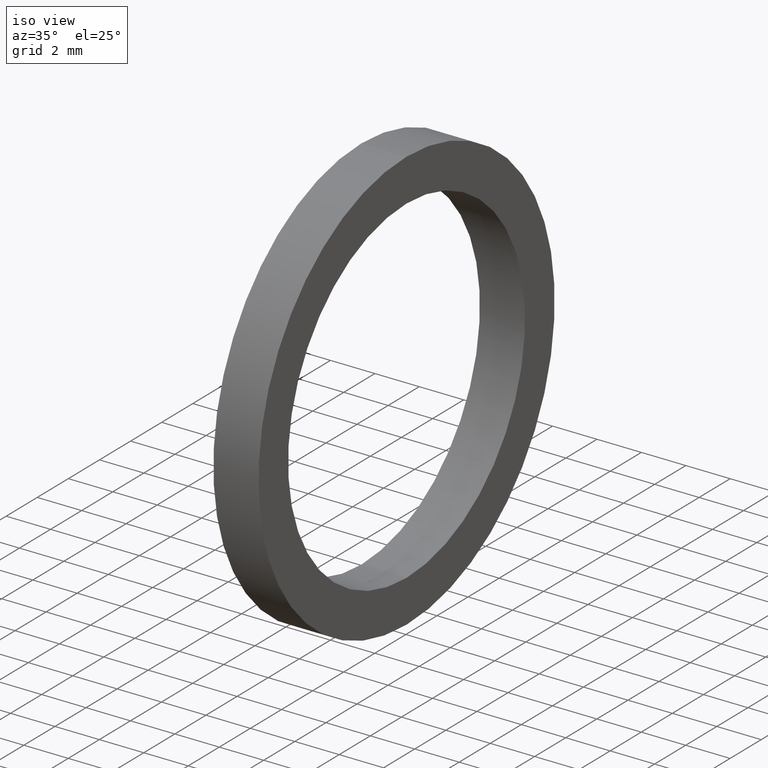
[diagram: clean part render]
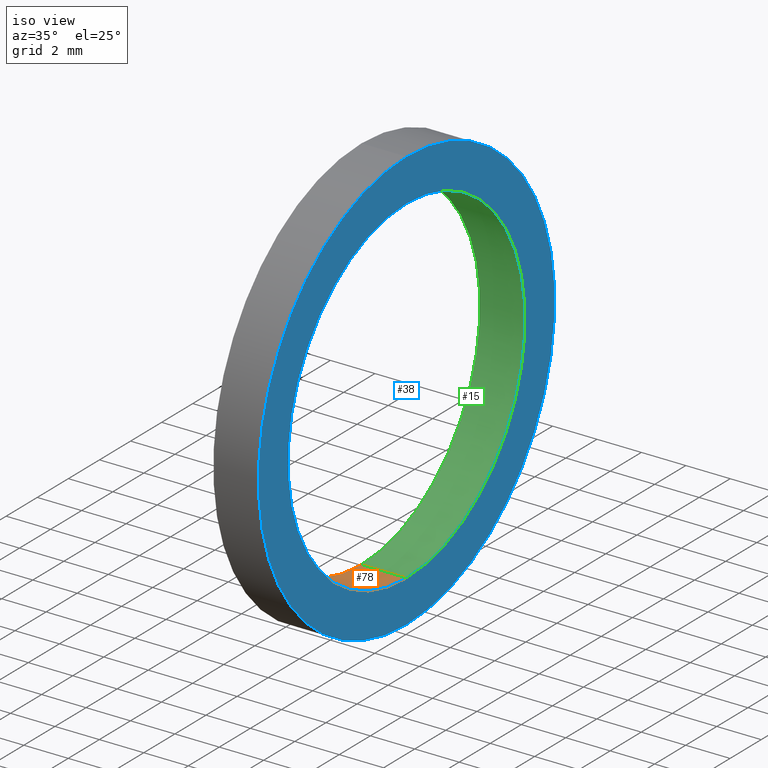
[diagram: same view with three faces highlighted in distinct colors, each labeled with its STEP entity id]
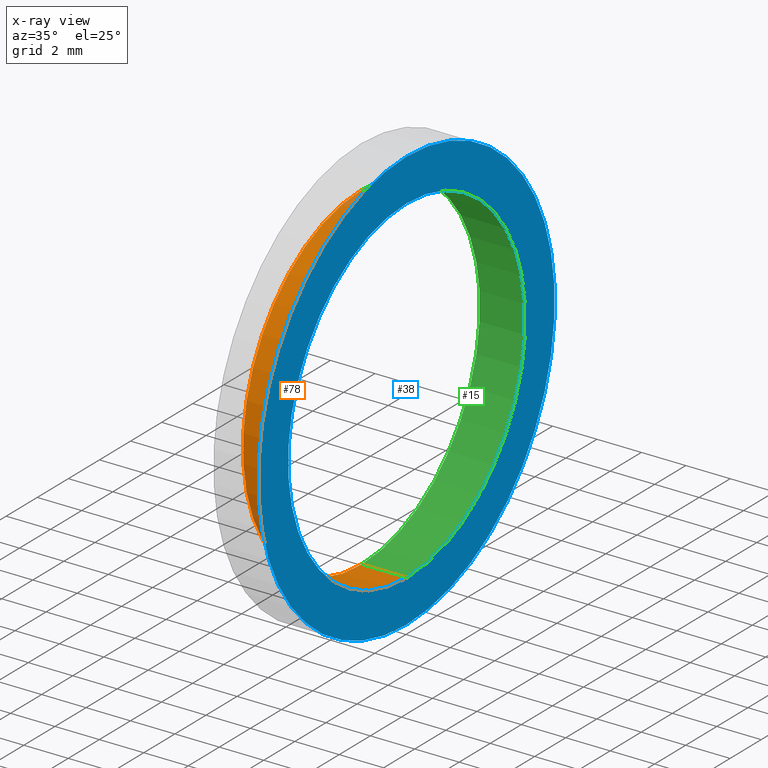
[diagram: x-ray of the same camera — body ghosted, the three highlighted faces saturated]
A machine part, iso view with three faces highlighted in distinct colors.
The next image is the same camera in x-ray (body ghosted, the three faces saturated) — at least one of them is partly hidden behind the body in this view.
Their STEP definitions:

[orange] entity #78 — the highlighted cylindrical surface (partial cylindrical patch) has radius 7.62 mm, axis along (-1, 0, 0).
#24 = ORIENTED_EDGE ( 'NONE', *, *, #51, .F. ) ;
#25 = VERTEX_POINT ( 'NONE', #172 ) ;
#29 = VERTEX_POINT ( 'NONE', #164 ) ;
#33 = EDGE_LOOP ( 'NONE', ( #24, #49, #64, #58 ) ) ;
#49 = ORIENTED_EDGE ( 'NONE', *, *, #50, .T. ) ;
#50 = EDGE_CURVE ( 'NONE', #25, #29, #202, .T. ) ;
#51 = EDGE_CURVE ( 'NONE', #25, #52, #91, .T. ) ;
#52 = VERTEX_POINT ( 'NONE', #177 ) ;
#58 = ORIENTED_EDGE ( 'NONE', *, *, #59, .F. ) ;
#59 = EDGE_CURVE ( 'NONE', #52, #60, #176, .T. ) ;
#60 = VERTEX_POINT ( 'NONE', #168 ) ;
#64 = ORIENTED_EDGE ( 'NONE', *, *, #65, .T. ) ;
#65 = EDGE_CURVE ( 'NONE', #29, #60, #248, .T. ) ;
#78 = ADVANCED_FACE ( 'NONE', ( #97 ), #96, .F. ) ;
#87 = DIRECTION ( 'NONE',  ( 0.0000000000000000000, 0.0000000000000000000, 1.000000000000000000 ) ) ;
#88 = DIRECTION ( 'NONE',  ( -1.000000000000000000, 0.0000000000000000000, 0.0000000000000000000 ) ) ;
#89 = CARTESIAN_POINT ( 'NONE',  ( 0.07999999999999996000, 0.0000000000000000000, 0.0000000000000000000 ) ) ;
#90 = AXIS2_PLACEMENT_3D ( 'NONE', #89, #88, #87 ) ;
#91 = CIRCLE ( 'NONE', #90, 0.2999999999999999900 ) ;
#92 = DIRECTION ( 'NONE',  ( 0.0000000000000000000, 0.0000000000000000000, 1.000000000000000000 ) ) ;
#93 = DIRECTION ( 'NONE',  ( -1.000000000000000000, 0.0000000000000000000, 0.0000000000000000000 ) ) ;
#94 = CARTESIAN_POINT ( 'NONE',  ( -1.721125226614714300, 0.0000000000000000000, 0.0000000000000000000 ) ) ;
#95 = AXIS2_PLACEMENT_3D ( 'NONE', #94, #93, #92 ) ;
#96 = CYLINDRICAL_SURFACE ( 'NONE', #95, 0.2999999999999999900 ) ;
#97 = FACE_OUTER_BOUND ( 'NONE', #33, .T. ) ;
#103 = DIRECTION ( 'NONE',  ( 0.0000000000000000000, 0.0000000000000000000, 1.000000000000000000 ) ) ;
#104 = DIRECTION ( 'NONE',  ( -1.000000000000000000, 0.0000000000000000000, 0.0000000000000000000 ) ) ;
#164 = CARTESIAN_POINT ( 'NONE',  ( 0.0000000000000000000, 3.673940397442058900E-017, -0.2999999999999999900 ) ) ;
#168 = CARTESIAN_POINT ( 'NONE',  ( 0.0000000000000000000, 0.0000000000000000000, 0.2999999999999999900 ) ) ;
#169 = DIRECTION ( 'NONE',  ( -1.000000000000000000, 0.0000000000000000000, 0.0000000000000000000 ) ) ;
#172 = CARTESIAN_POINT ( 'NONE',  ( 0.07999999999999996000, 3.673940397442058900E-017, -0.2999999999999999900 ) ) ;
#176 = LINE ( 'NONE', #211, #210 ) ;
#177 = CARTESIAN_POINT ( 'NONE',  ( 0.07999999999999996000, 0.0000000000000000000, 0.2999999999999999900 ) ) ;
#199 = DIRECTION ( 'NONE',  ( -1.000000000000000000, 0.0000000000000000000, 0.0000000000000000000 ) ) ;
#200 = VECTOR ( 'NONE', #199, 39.37007874015748100 ) ;
#201 = CARTESIAN_POINT ( 'NONE',  ( -1.721125226614714300, 3.673940397442058900E-017, -0.2999999999999999900 ) ) ;
#202 = LINE ( 'NONE', #201, #200 ) ;
#210 = VECTOR ( 'NONE', #169, 39.37007874015748100 ) ;
#211 = CARTESIAN_POINT ( 'NONE',  ( -1.721125226614714300, 0.0000000000000000000, 0.2999999999999999900 ) ) ;
#246 = CARTESIAN_POINT ( 'NONE',  ( 0.0000000000000000000, 0.0000000000000000000, 0.0000000000000000000 ) ) ;
#247 = AXIS2_PLACEMENT_3D ( 'NONE', #246, #104, #103 ) ;
#248 = CIRCLE ( 'NONE', #247, 0.2999999999999999900 ) ;

[blue] entity #38 — the highlighted planar face has unit normal (1, 0, 0).
#25 = VERTEX_POINT ( 'NONE', #172 ) ;
#26 = EDGE_CURVE ( 'NONE', #32, #63, #209, .T. ) ;
#28 = EDGE_LOOP ( 'NONE', ( #79, #81 ) ) ;
#31 = EDGE_CURVE ( 'NONE', #63, #32, #85, .T. ) ;
#32 = VERTEX_POINT ( 'NONE', #86 ) ;
#37 = ORIENTED_EDGE ( 'NONE', *, *, #26, .F. ) ;
#38 = ADVANCED_FACE ( 'NONE', ( #193, #240 ), #239, .T. ) ;
#51 = EDGE_CURVE ( 'NONE', #25, #52, #91, .T. ) ;
#52 = VERTEX_POINT ( 'NONE', #177 ) ;
#63 = VERTEX_POINT ( 'NONE', #249 ) ;
#79 = ORIENTED_EDGE ( 'NONE', *, *, #80, .T. ) ;
#80 = EDGE_CURVE ( 'NONE', #52, #25, #220, .T. ) ;
#81 = ORIENTED_EDGE ( 'NONE', *, *, #51, .T. ) ;
#82 = EDGE_LOOP ( 'NONE', ( #83, #37 ) ) ;
#83 = ORIENTED_EDGE ( 'NONE', *, *, #31, .F. ) ;
#84 = AXIS2_PLACEMENT_3D ( 'NONE', #173, #204, #203 ) ;
#85 = CIRCLE ( 'NONE', #84, 0.3750000000000000600 ) ;
#86 = CARTESIAN_POINT ( 'NONE',  ( 0.07999999999999996000, 4.592425496802575500E-017, -0.3750000000000000600 ) ) ;
#87 = DIRECTION ( 'NONE',  ( 0.0000000000000000000, 0.0000000000000000000, 1.000000000000000000 ) ) ;
#88 = DIRECTION ( 'NONE',  ( -1.000000000000000000, 0.0000000000000000000, 0.0000000000000000000 ) ) ;
#89 = CARTESIAN_POINT ( 'NONE',  ( 0.07999999999999996000, 0.0000000000000000000, 0.0000000000000000000 ) ) ;
#90 = AXIS2_PLACEMENT_3D ( 'NONE', #89, #88, #87 ) ;
#91 = CIRCLE ( 'NONE', #90, 0.2999999999999999900 ) ;
#108 = CARTESIAN_POINT ( 'NONE',  ( 0.07999999999999996000, 0.0000000000000000000, 0.0000000000000000000 ) ) ;
#172 = CARTESIAN_POINT ( 'NONE',  ( 0.07999999999999996000, 3.673940397442058900E-017, -0.2999999999999999900 ) ) ;
#173 = CARTESIAN_POINT ( 'NONE',  ( 0.07999999999999996000, 0.0000000000000000000, 0.0000000000000000000 ) ) ;
#177 = CARTESIAN_POINT ( 'NONE',  ( 0.07999999999999996000, 0.0000000000000000000, 0.2999999999999999900 ) ) ;
#193 = FACE_BOUND ( 'NONE', #28, .T. ) ;
#194 = DIRECTION ( 'NONE',  ( 0.0000000000000000000, 0.0000000000000000000, -1.000000000000000000 ) ) ;
#195 = DIRECTION ( 'NONE',  ( 1.000000000000000000, 0.0000000000000000000, 0.0000000000000000000 ) ) ;
#196 = CARTESIAN_POINT ( 'NONE',  ( 0.08000000000000000200, -0.2999999999999999900, 0.0000000000000000000 ) ) ;
#197 = AXIS2_PLACEMENT_3D ( 'NONE', #196, #195, #194 ) ;
#203 = DIRECTION ( 'NONE',  ( 0.0000000000000000000, 0.0000000000000000000, 1.000000000000000000 ) ) ;
#204 = DIRECTION ( 'NONE',  ( -1.000000000000000000, 0.0000000000000000000, 0.0000000000000000000 ) ) ;
#209 = CIRCLE ( 'NONE', #215, 0.3750000000000000600 ) ;
#215 = AXIS2_PLACEMENT_3D ( 'NONE', #108, #222, #241 ) ;
#216 = DIRECTION ( 'NONE',  ( 0.0000000000000000000, 0.0000000000000000000, 1.000000000000000000 ) ) ;
#217 = DIRECTION ( 'NONE',  ( -1.000000000000000000, 0.0000000000000000000, 0.0000000000000000000 ) ) ;
#218 = CARTESIAN_POINT ( 'NONE',  ( 0.07999999999999996000, 0.0000000000000000000, 0.0000000000000000000 ) ) ;
#219 = AXIS2_PLACEMENT_3D ( 'NONE', #218, #217, #216 ) ;
#220 = CIRCLE ( 'NONE', #219, 0.2999999999999999900 ) ;
#222 = DIRECTION ( 'NONE',  ( -1.000000000000000000, 0.0000000000000000000, 0.0000000000000000000 ) ) ;
#239 = PLANE ( 'NONE',  #197 ) ;
#240 = FACE_OUTER_BOUND ( 'NONE', #82, .T. ) ;
#241 = DIRECTION ( 'NONE',  ( 0.0000000000000000000, 0.0000000000000000000, 1.000000000000000000 ) ) ;
#249 = CARTESIAN_POINT ( 'NONE',  ( 0.07999999999999996000, 0.0000000000000000000, 0.3750000000000000600 ) ) ;

[green] entity #15 — the highlighted cylindrical surface (partial cylindrical patch) has radius 7.62 mm, axis along (-1, 0, 0).
#6 = CARTESIAN_POINT ( 'NONE',  ( -1.721125226614714300, 0.0000000000000000000, 0.0000000000000000000 ) ) ;
#7 = CYLINDRICAL_SURFACE ( 'NONE', #46, 0.2999999999999999900 ) ;
#8 = FACE_OUTER_BOUND ( 'NONE', #13, .T. ) ;
#9 = ORIENTED_EDGE ( 'NONE', *, *, #80, .F. ) ;
#10 = ORIENTED_EDGE ( 'NONE', *, *, #50, .F. ) ;
#11 = ORIENTED_EDGE ( 'NONE', *, *, #56, .T. ) ;
#13 = EDGE_LOOP ( 'NONE', ( #10, #9, #14, #11 ) ) ;
#14 = ORIENTED_EDGE ( 'NONE', *, *, #59, .T. ) ;
#15 = ADVANCED_FACE ( 'NONE', ( #8 ), #7, .F. ) ;
#25 = VERTEX_POINT ( 'NONE', #172 ) ;
#29 = VERTEX_POINT ( 'NONE', #164 ) ;
#44 = DIRECTION ( 'NONE',  ( 0.0000000000000000000, 0.0000000000000000000, 1.000000000000000000 ) ) ;
#45 = DIRECTION ( 'NONE',  ( -1.000000000000000000, 0.0000000000000000000, 0.0000000000000000000 ) ) ;
#46 = AXIS2_PLACEMENT_3D ( 'NONE', #6, #45, #44 ) ;
#50 = EDGE_CURVE ( 'NONE', #25, #29, #202, .T. ) ;
#52 = VERTEX_POINT ( 'NONE', #177 ) ;
#56 = EDGE_CURVE ( 'NONE', #60, #29, #175, .T. ) ;
#59 = EDGE_CURVE ( 'NONE', #52, #60, #176, .T. ) ;
#60 = VERTEX_POINT ( 'NONE', #168 ) ;
#80 = EDGE_CURVE ( 'NONE', #52, #25, #220, .T. ) ;
#164 = CARTESIAN_POINT ( 'NONE',  ( 0.0000000000000000000, 3.673940397442058900E-017, -0.2999999999999999900 ) ) ;
#168 = CARTESIAN_POINT ( 'NONE',  ( 0.0000000000000000000, 0.0000000000000000000, 0.2999999999999999900 ) ) ;
#169 = DIRECTION ( 'NONE',  ( -1.000000000000000000, 0.0000000000000000000, 0.0000000000000000000 ) ) ;
#172 = CARTESIAN_POINT ( 'NONE',  ( 0.07999999999999996000, 3.673940397442058900E-017, -0.2999999999999999900 ) ) ;
#174 = AXIS2_PLACEMENT_3D ( 'NONE', #214, #213, #212 ) ;
#175 = CIRCLE ( 'NONE', #174, 0.2999999999999999900 ) ;
#176 = LINE ( 'NONE', #211, #210 ) ;
#177 = CARTESIAN_POINT ( 'NONE',  ( 0.07999999999999996000, 0.0000000000000000000, 0.2999999999999999900 ) ) ;
#199 = DIRECTION ( 'NONE',  ( -1.000000000000000000, 0.0000000000000000000, 0.0000000000000000000 ) ) ;
#200 = VECTOR ( 'NONE', #199, 39.37007874015748100 ) ;
#201 = CARTESIAN_POINT ( 'NONE',  ( -1.721125226614714300, 3.673940397442058900E-017, -0.2999999999999999900 ) ) ;
#202 = LINE ( 'NONE', #201, #200 ) ;
#210 = VECTOR ( 'NONE', #169, 39.37007874015748100 ) ;
#211 = CARTESIAN_POINT ( 'NONE',  ( -1.721125226614714300, 0.0000000000000000000, 0.2999999999999999900 ) ) ;
#212 = DIRECTION ( 'NONE',  ( 0.0000000000000000000, 0.0000000000000000000, 1.000000000000000000 ) ) ;
#213 = DIRECTION ( 'NONE',  ( -1.000000000000000000, 0.0000000000000000000, 0.0000000000000000000 ) ) ;
#214 = CARTESIAN_POINT ( 'NONE',  ( 0.0000000000000000000, 0.0000000000000000000, 0.0000000000000000000 ) ) ;
#216 = DIRECTION ( 'NONE',  ( 0.0000000000000000000, 0.0000000000000000000, 1.000000000000000000 ) ) ;
#217 = DIRECTION ( 'NONE',  ( -1.000000000000000000, 0.0000000000000000000, 0.0000000000000000000 ) ) ;
#218 = CARTESIAN_POINT ( 'NONE',  ( 0.07999999999999996000, 0.0000000000000000000, 0.0000000000000000000 ) ) ;
#219 = AXIS2_PLACEMENT_3D ( 'NONE', #218, #217, #216 ) ;
#220 = CIRCLE ( 'NONE', #219, 0.2999999999999999900 ) ;